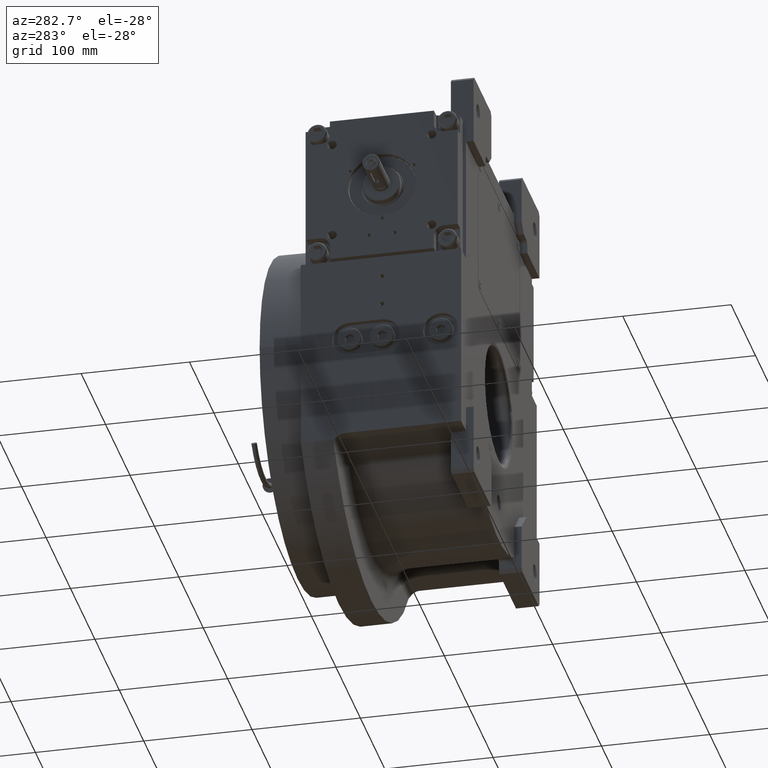
[diagram: clean part render]
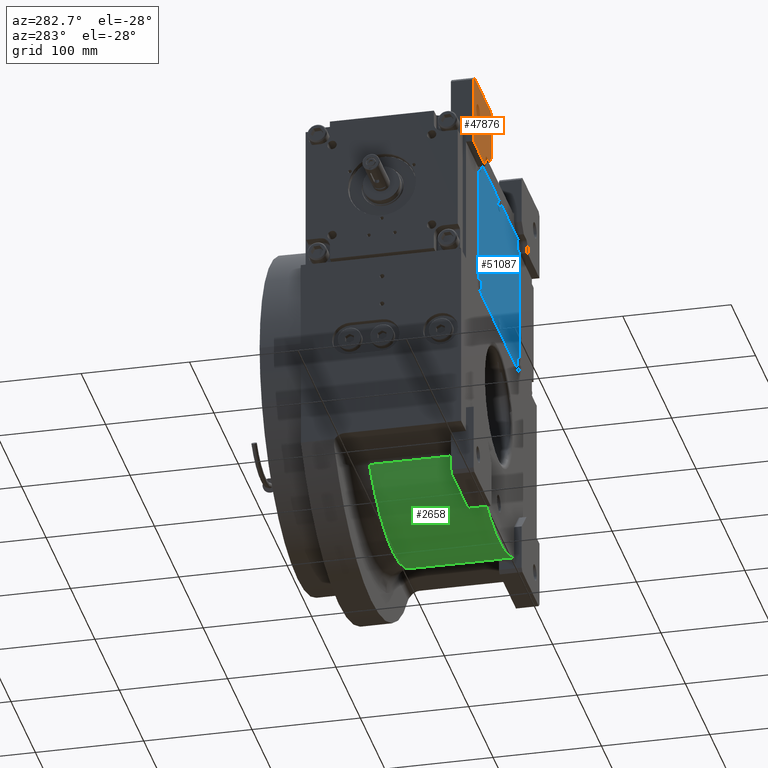
[diagram: same view with three faces highlighted in distinct colors, each labeled with its STEP entity id]
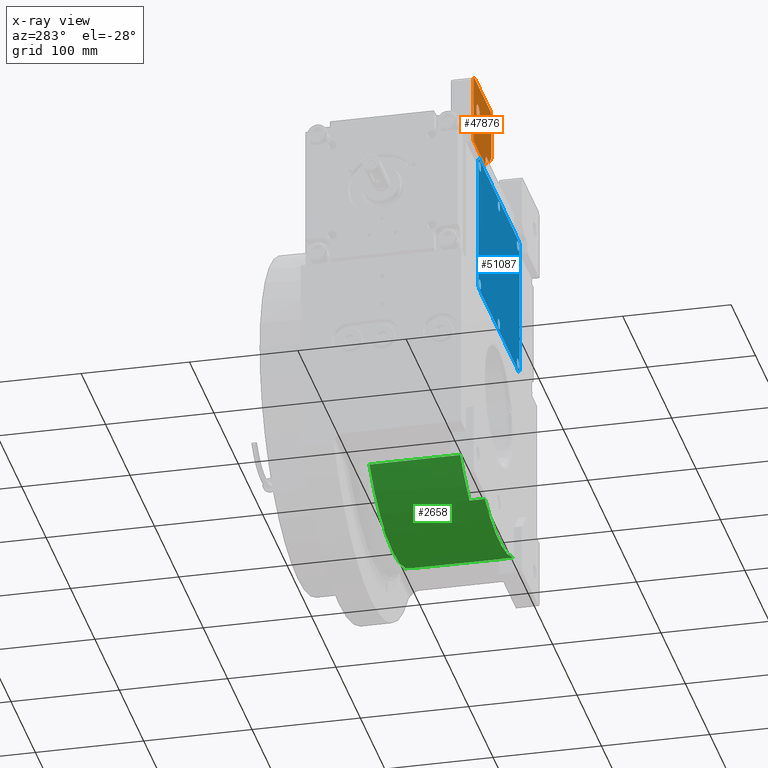
[diagram: x-ray of the same camera — body ghosted, the three highlighted faces saturated]
A machine part, auxiliary view with three faces highlighted in distinct colors.
The next image is the same camera in x-ray (body ghosted, the three faces saturated) — at least one of them is partly hidden behind the body in this view.
Their STEP definitions:

[orange] entity #47876 — the highlighted planar face has unit normal (0, -1, 0).
#321 = VECTOR ( 'NONE', #588, 1000.000000000000000 ) ;
#588 = DIRECTION ( 'NONE',  ( -1.000000000000000000, 0.000000000000000000, 0.000000000000000000 ) ) ;
#964 = VERTEX_POINT ( 'NONE', #29913 ) ;
#1017 = EDGE_CURVE ( 'NONE', #26307, #30954, #14153, .T. ) ;
#2501 = CARTESIAN_POINT ( 'NONE',  ( -62.00000000000000000, -80.00000000000000000, 262.0000000000000000 ) ) ;
#4228 = LINE ( 'NONE', #24279, #58183 ) ;
#4727 = CIRCLE ( 'NONE', #32773, 5.000000000000004441 ) ;
#5885 = CARTESIAN_POINT ( 'NONE',  ( -70.50000000000000000, -80.00000000000000000, 210.5000000000000000 ) ) ;
#7514 = CARTESIAN_POINT ( 'NONE',  ( -70.50000000000000000, -80.00000000000000000, 210.5000000000000000 ) ) ;
#7869 = FACE_BOUND ( 'NONE', #13939, .T. ) ;
#8082 = ORIENTED_EDGE ( 'NONE', *, *, #28543, .T. ) ;
#8217 = FACE_OUTER_BOUND ( 'NONE', #54449, .T. ) ;
#8939 = DIRECTION ( 'NONE',  ( -1.000000000000000000, 0.000000000000000000, 0.000000000000000000 ) ) ;
#9976 = ORIENTED_EDGE ( 'NONE', *, *, #11133, .T. ) ;
#11026 = VERTEX_POINT ( 'NONE', #40981 ) ;
#11133 = EDGE_CURVE ( 'NONE', #30954, #57952, #36730, .T. ) ;
#13729 = EDGE_CURVE ( 'NONE', #11026, #42221, #50298, .T. ) ;
#13939 = EDGE_LOOP ( 'NONE', ( #57106, #66946 ) ) ;
#14153 = LINE ( 'NONE', #50674, #62477 ) ;
#14559 = DIRECTION ( 'NONE',  ( 0.000000000000000000, 0.000000000000000000, 1.000000000000000000 ) ) ;
#14816 = CIRCLE ( 'NONE', #60813, 7.499999999999992895 ) ;
#17482 = AXIS2_PLACEMENT_3D ( 'NONE', #29367, #18854, #45193 ) ;
#17882 = ORIENTED_EDGE ( 'NONE', *, *, #50992, .F. ) ;
#18527 = VERTEX_POINT ( 'NONE', #60204 ) ;
#18854 = DIRECTION ( 'NONE',  ( 0.000000000000000000, 1.000000000000000000, 0.000000000000000000 ) ) ;
#19013 = DIRECTION ( 'NONE',  ( 1.000000000000000000, 0.000000000000000000, 0.000000000000000000 ) ) ;
#19713 = CIRCLE ( 'NONE', #17482, 7.499999999999992895 ) ;
#21059 = EDGE_CURVE ( 'NONE', #57952, #18527, #41426, .T. ) ;
#24033 = DIRECTION ( 'NONE',  ( 0.000000000000000000, -1.000000000000000000, 0.000000000000000000 ) ) ;
#24279 = CARTESIAN_POINT ( 'NONE',  ( -135.0000000000000000, -80.00000000000000000, 199.0000000000000000 ) ) ;
#24720 = PLANE ( 'NONE',  #62741 ) ;
#25064 = CARTESIAN_POINT ( 'NONE',  ( 0.000000000000000000, -80.00000000000000000, 0.000000000000000000 ) ) ;
#25068 = CARTESIAN_POINT ( 'NONE',  ( -62.00000000000000000, -80.00000000000000000, 219.0000000000000000 ) ) ;
#25375 = VECTOR ( 'NONE', #56223, 1000.000000000000000 ) ;
#25616 = DIRECTION ( 'NONE',  ( -0.7071067811865474617, 0.000000000000000000, -0.7071067811865474617 ) ) ;
#25760 = LINE ( 'NONE', #25068, #55422 ) ;
#26307 = VERTEX_POINT ( 'NONE', #2501 ) ;
#28543 = EDGE_CURVE ( 'NONE', #67443, #964, #32585, .T. ) ;
#29218 = DIRECTION ( 'NONE',  ( -0.7071067811865474617, 0.000000000000000000, 0.7071067811865474617 ) ) ;
#29318 = DIRECTION ( 'NONE',  ( 2.775557561562888984E-15, 0.000000000000000000, 1.000000000000000000 ) ) ;
#29367 = CARTESIAN_POINT ( 'NONE',  ( -116.0000000000000000, -80.00000000000000000, 238.0000000000000000 ) ) ;
#29913 = CARTESIAN_POINT ( 'NONE',  ( -62.00000000000000000, -80.00000000000000000, 219.0000000000000000 ) ) ;
#30954 = VERTEX_POINT ( 'NONE', #65042 ) ;
#31037 = EDGE_CURVE ( 'NONE', #18527, #39800, #33704, .T. ) ;
#31472 = VERTEX_POINT ( 'NONE', #39251 ) ;
#32080 = EDGE_CURVE ( 'NONE', #53634, #31472, #14816, .T. ) ;
#32585 = LINE ( 'NONE', #5885, #37451 ) ;
#32773 = AXIS2_PLACEMENT_3D ( 'NONE', #50089, #60639, #29318 ) ;
#33192 = EDGE_CURVE ( 'NONE', #67443, #68679, #69091, .T. ) ;
#33704 = LINE ( 'NONE', #60460, #25375 ) ;
#34905 = DIRECTION ( 'NONE',  ( -1.000000000000000000, 0.000000000000000000, 0.000000000000000000 ) ) ;
#35081 = CARTESIAN_POINT ( 'NONE',  ( -85.50000000000000000, -80.00000000000000000, 199.0000000000000000 ) ) ;
#36277 = ORIENTED_EDGE ( 'NONE', *, *, #13729, .F. ) ;
#36730 = LINE ( 'NONE', #42701, #61351 ) ;
#37404 = EDGE_CURVE ( 'NONE', #31472, #53634, #19713, .T. ) ;
#37451 = VECTOR ( 'NONE', #55093, 1000.000000000000000 ) ;
#39251 = CARTESIAN_POINT ( 'NONE',  ( -108.5000000000000000, -80.00000000000000000, 238.0000000000000000 ) ) ;
#39800 = VERTEX_POINT ( 'NONE', #52165 ) ;
#40981 = CARTESIAN_POINT ( 'NONE',  ( -85.50000000000000000, -80.00000000000000000, 205.5000000000000000 ) ) ;
#41382 = ORIENTED_EDGE ( 'NONE', *, *, #33192, .F. ) ;
#41426 = LINE ( 'NONE', #63225, #68230 ) ;
#42221 = VERTEX_POINT ( 'NONE', #35081 ) ;
#42701 = CARTESIAN_POINT ( 'NONE',  ( -65.00000000000000000, -80.00000000000000000, 265.0000000000000000 ) ) ;
#43584 = VECTOR ( 'NONE', #55584, 1000.000000000000000 ) ;
#45193 = DIRECTION ( 'NONE',  ( 1.000000000000000000, 0.000000000000000000, 0.000000000000000000 ) ) ;
#46048 = CARTESIAN_POINT ( 'NONE',  ( -132.0000000000000000, -80.00000000000000000, 265.0000000000000000 ) ) ;
#46526 = CARTESIAN_POINT ( 'NONE',  ( -116.0000000000000000, -80.00000000000000000, 238.0000000000000000 ) ) ;
#46766 = EDGE_CURVE ( 'NONE', #39800, #42221, #4228, .T. ) ;
#47398 = ORIENTED_EDGE ( 'NONE', *, *, #46766, .T. ) ;
#47876 = ADVANCED_FACE ( 'NONE', ( #7869, #8217 ), #24720, .T. ) ;
#48348 = DIRECTION ( 'NONE',  ( -1.000000000000000000, 0.000000000000000000, 0.000000000000000000 ) ) ;
#48363 = CARTESIAN_POINT ( 'NONE',  ( -70.50000000000000000, -80.00000000000000000, 210.5000000000000000 ) ) ;
#50026 = ORIENTED_EDGE ( 'NONE', *, *, #64885, .T. ) ;
#50089 = CARTESIAN_POINT ( 'NONE',  ( -80.50000000000000000, -80.00000000000000000, 205.5000000000000000 ) ) ;
#50298 = LINE ( 'NONE', #55240, #43584 ) ;
#50674 = CARTESIAN_POINT ( 'NONE',  ( -62.00000000000000000, -80.00000000000000000, 262.0000000000000000 ) ) ;
#50992 = EDGE_CURVE ( 'NONE', #68679, #11026, #4727, .T. ) ;
#52165 = CARTESIAN_POINT ( 'NONE',  ( -135.0000000000000000, -80.00000000000000000, 199.0000000000000000 ) ) ;
#53634 = VERTEX_POINT ( 'NONE', #69180 ) ;
#54056 = CARTESIAN_POINT ( 'NONE',  ( -80.50000000000000000, -80.00000000000000000, 210.5000000000000000 ) ) ;
#54449 = EDGE_LOOP ( 'NONE', ( #9976, #62216, #62875, #47398, #36277, #17882, #41382, #8082, #50026, #54860 ) ) ;
#54860 = ORIENTED_EDGE ( 'NONE', *, *, #1017, .T. ) ;
#55093 = DIRECTION ( 'NONE',  ( 0.7071067811865480168, 0.000000000000000000, 0.7071067811865470176 ) ) ;
#55240 = CARTESIAN_POINT ( 'NONE',  ( -85.50000000000000000, -80.00000000000000000, 205.5000000000000000 ) ) ;
#55422 = VECTOR ( 'NONE', #14559, 1000.000000000000000 ) ;
#55584 = DIRECTION ( 'NONE',  ( 0.000000000000000000, 0.000000000000000000, -1.000000000000000000 ) ) ;
#56223 = DIRECTION ( 'NONE',  ( 0.000000000000000000, 0.000000000000000000, -1.000000000000000000 ) ) ;
#57106 = ORIENTED_EDGE ( 'NONE', *, *, #37404, .T. ) ;
#57952 = VERTEX_POINT ( 'NONE', #46048 ) ;
#58183 = VECTOR ( 'NONE', #19013, 1000.000000000000000 ) ;
#60204 = CARTESIAN_POINT ( 'NONE',  ( -135.0000000000000000, -80.00000000000000000, 262.0000000000000000 ) ) ;
#60460 = CARTESIAN_POINT ( 'NONE',  ( -135.0000000000000000, -80.00000000000000000, 262.0000000000000000 ) ) ;
#60639 = DIRECTION ( 'NONE',  ( 0.000000000000000000, -1.000000000000000000, 0.000000000000000000 ) ) ;
#60813 = AXIS2_PLACEMENT_3D ( 'NONE', #46526, #67963, #8939 ) ;
#61351 = VECTOR ( 'NONE', #48348, 1000.000000000000000 ) ;
#62216 = ORIENTED_EDGE ( 'NONE', *, *, #21059, .T. ) ;
#62477 = VECTOR ( 'NONE', #29218, 1000.000000000000114 ) ;
#62741 = AXIS2_PLACEMENT_3D ( 'NONE', #25064, #24033, #34905 ) ;
#62875 = ORIENTED_EDGE ( 'NONE', *, *, #31037, .T. ) ;
#63225 = CARTESIAN_POINT ( 'NONE',  ( -132.0000000000000000, -80.00000000000000000, 265.0000000000000000 ) ) ;
#64885 = EDGE_CURVE ( 'NONE', #964, #26307, #25760, .T. ) ;
#65042 = CARTESIAN_POINT ( 'NONE',  ( -65.00000000000000000, -80.00000000000000000, 265.0000000000000000 ) ) ;
#66946 = ORIENTED_EDGE ( 'NONE', *, *, #32080, .T. ) ;
#67443 = VERTEX_POINT ( 'NONE', #7514 ) ;
#67963 = DIRECTION ( 'NONE',  ( 0.000000000000000000, 1.000000000000000000, 0.000000000000000000 ) ) ;
#68230 = VECTOR ( 'NONE', #25616, 1000.000000000000114 ) ;
#68679 = VERTEX_POINT ( 'NONE', #54056 ) ;
#69091 = LINE ( 'NONE', #48363, #321 ) ;
#69180 = CARTESIAN_POINT ( 'NONE',  ( -123.5000000000000000, -80.00000000000000000, 238.0000000000000000 ) ) ;

[blue] entity #51087 — the highlighted planar face has unit normal (0, -1, 0).
#575 = EDGE_CURVE ( 'NONE', #45671, #15589, #57967, .T. ) ;
#1290 = DIRECTION ( 'NONE',  ( 0.7071067811865474617, 0.7071067811865474617, 0.000000000000000000 ) ) ;
#1316 = EDGE_CURVE ( 'NONE', #15589, #45671, #23200, .T. ) ;
#1605 = DIRECTION ( 'NONE',  ( -1.000000000000000000, 0.000000000000000000, 0.000000000000000000 ) ) ;
#1920 = CARTESIAN_POINT ( 'NONE',  ( -4.500000000000000000, -60.00000000000000000, 3.000000000000002665 ) ) ;
#2086 = ORIENTED_EDGE ( 'NONE', *, *, #38040, .F. ) ;
#2143 = CIRCLE ( 'NONE', #37933, 4.500000000000000000 ) ;
#2975 = PLANE ( 'NONE',  #29249 ) ;
#3354 = CARTESIAN_POINT ( 'NONE',  ( 78.00000000000000000, 60.00000000000000000, 3.000000000000002665 ) ) ;
#3535 = EDGE_LOOP ( 'NONE', ( #23468, #66430, #34102, #14274, #33485, #65604, #31343, #69366 ) ) ;
#3966 = DIRECTION ( 'NONE',  ( -1.000000000000000000, 0.000000000000000000, 0.000000000000000000 ) ) ;
#4280 = DIRECTION ( 'NONE',  ( 1.000000000000000000, 0.000000000000000000, 0.000000000000000000 ) ) ;
#5376 = DIRECTION ( 'NONE',  ( -1.000000000000000000, 0.000000000000000000, 0.000000000000000000 ) ) ;
#6337 = CARTESIAN_POINT ( 'NONE',  ( -82.50000000000000000, 60.00000000000000000, 3.000000000000002665 ) ) ;
#6410 = VERTEX_POINT ( 'NONE', #17989 ) ;
#6659 = CARTESIAN_POINT ( 'NONE',  ( 81.50000000000000000, -66.50000000000000000, 3.000000000000002665 ) ) ;
#6753 = DIRECTION ( 'NONE',  ( 0.000000000000000000, 0.000000000000000000, 1.000000000000000000 ) ) ;
#7067 = DIRECTION ( 'NONE',  ( 1.000000000000000000, 0.000000000000000000, 0.000000000000000000 ) ) ;
#7266 = ORIENTED_EDGE ( 'NONE', *, *, #15461, .F. ) ;
#8075 = AXIS2_PLACEMENT_3D ( 'NONE', #3354, #24782, #67661 ) ;
#8555 = AXIS2_PLACEMENT_3D ( 'NONE', #36640, #15938, #5376 ) ;
#8604 = DIRECTION ( 'NONE',  ( 1.000000000000000000, 0.000000000000000000, 0.000000000000000000 ) ) ;
#8796 = EDGE_CURVE ( 'NONE', #28009, #37853, #46494, .T. ) ;
#8950 = EDGE_CURVE ( 'NONE', #38189, #28009, #18335, .T. ) ;
#9289 = CARTESIAN_POINT ( 'NONE',  ( 0.000000000000000000, 0.000000000000000000, 3.000000000000002665 ) ) ;
#9704 = VERTEX_POINT ( 'NONE', #1920 ) ;
#9726 = CARTESIAN_POINT ( 'NONE',  ( 73.50000000000000000, -60.00000000000000000, 3.000000000000002665 ) ) ;
#9858 = CARTESIAN_POINT ( 'NONE',  ( 0.000000000000000000, -60.00000000000000000, 3.000000000000002665 ) ) ;
#10086 = ORIENTED_EDGE ( 'NONE', *, *, #25368, .F. ) ;
#10179 = EDGE_LOOP ( 'NONE', ( #10086, #2086 ) ) ;
#10281 = CARTESIAN_POINT ( 'NONE',  ( 81.50000000000000000, 66.50000000000000000, 3.000000000000002665 ) ) ;
#10334 = VERTEX_POINT ( 'NONE', #46071 ) ;
#10510 = VERTEX_POINT ( 'NONE', #6337 ) ;
#10608 = CARTESIAN_POINT ( 'NONE',  ( 84.50000000000000000, 63.50000000000000000, 3.000000000000002665 ) ) ;
#10975 = EDGE_LOOP ( 'NONE', ( #43717, #32998 ) ) ;
#11713 = AXIS2_PLACEMENT_3D ( 'NONE', #12729, #38369, #54222 ) ;
#11835 = FACE_OUTER_BOUND ( 'NONE', #3535, .T. ) ;
#12317 = CARTESIAN_POINT ( 'NONE',  ( -84.50000000000000000, 63.50000000000000000, 3.000000000000002665 ) ) ;
#12729 = CARTESIAN_POINT ( 'NONE',  ( 0.000000000000000000, 60.00000000000000000, 3.000000000000002665 ) ) ;
#12913 = EDGE_CURVE ( 'NONE', #62732, #41488, #32984, .T. ) ;
#13889 = DIRECTION ( 'NONE',  ( 0.000000000000000000, 0.000000000000000000, 1.000000000000000000 ) ) ;
#13970 = CIRCLE ( 'NONE', #44234, 4.500000000000000000 ) ;
#14091 = AXIS2_PLACEMENT_3D ( 'NONE', #51415, #25723, #3966 ) ;
#14274 = ORIENTED_EDGE ( 'NONE', *, *, #8950, .T. ) ;
#14724 = DIRECTION ( 'NONE',  ( 1.000000000000000000, 0.000000000000000000, 0.000000000000000000 ) ) ;
#14868 = CIRCLE ( 'NONE', #39559, 4.500000000000000000 ) ;
#14924 = CARTESIAN_POINT ( 'NONE',  ( 4.500000000000000000, 60.00000000000000000, 3.000000000000002665 ) ) ;
#15461 = EDGE_CURVE ( 'NONE', #28906, #9704, #2143, .T. ) ;
#15589 = VERTEX_POINT ( 'NONE', #15818 ) ;
#15818 = CARTESIAN_POINT ( 'NONE',  ( 82.50000000000000000, -60.00000000000000000, 3.000000000000002665 ) ) ;
#15938 = DIRECTION ( 'NONE',  ( 0.000000000000000000, 0.000000000000000000, 1.000000000000000000 ) ) ;
#16431 = CARTESIAN_POINT ( 'NONE',  ( 81.50000000000000000, -66.50000000000000000, 3.000000000000002665 ) ) ;
#17154 = EDGE_CURVE ( 'NONE', #6410, #38189, #58092, .T. ) ;
#17605 = DIRECTION ( 'NONE',  ( 0.000000000000000000, 0.000000000000000000, 1.000000000000000000 ) ) ;
#17736 = CARTESIAN_POINT ( 'NONE',  ( 84.50000000000000000, -63.50000000000000000, 3.000000000000002665 ) ) ;
#17989 = CARTESIAN_POINT ( 'NONE',  ( 81.50000000000000000, 66.50000000000000000, 3.000000000000002665 ) ) ;
#18335 = LINE ( 'NONE', #50647, #22794 ) ;
#19801 = DIRECTION ( 'NONE',  ( 0.000000000000000000, -1.000000000000000000, 0.000000000000000000 ) ) ;
#20157 = VERTEX_POINT ( 'NONE', #34413 ) ;
#20782 = CIRCLE ( 'NONE', #14091, 4.500000000000003553 ) ;
#20939 = CARTESIAN_POINT ( 'NONE',  ( -84.50000000000000000, -63.50000000000000000, 3.000000000000002665 ) ) ;
#21806 = VERTEX_POINT ( 'NONE', #50442 ) ;
#22064 = CARTESIAN_POINT ( 'NONE',  ( -78.00000000000000000, 60.00000000000000000, 3.000000000000002665 ) ) ;
#22425 = VERTEX_POINT ( 'NONE', #67054 ) ;
#22464 = DIRECTION ( 'NONE',  ( 0.000000000000000000, 1.000000000000000000, 0.000000000000000000 ) ) ;
#22687 = CARTESIAN_POINT ( 'NONE',  ( 78.00000000000000000, 60.00000000000000000, 3.000000000000002665 ) ) ;
#22794 = VECTOR ( 'NONE', #60521, 1000.000000000000114 ) ;
#23200 = CIRCLE ( 'NONE', #28799, 4.500000000000003553 ) ;
#23202 = CARTESIAN_POINT ( 'NONE',  ( 78.00000000000000000, -60.00000000000000000, 3.000000000000002665 ) ) ;
#23468 = ORIENTED_EDGE ( 'NONE', *, *, #12913, .T. ) ;
#23971 = AXIS2_PLACEMENT_3D ( 'NONE', #22064, #64612, #59688 ) ;
#24747 = LINE ( 'NONE', #35628, #39286 ) ;
#24782 = DIRECTION ( 'NONE',  ( 0.000000000000000000, 0.000000000000000000, 1.000000000000000000 ) ) ;
#25038 = VECTOR ( 'NONE', #19801, 1000.000000000000000 ) ;
#25297 = EDGE_LOOP ( 'NONE', ( #55477, #62528 ) ) ;
#25368 = EDGE_CURVE ( 'NONE', #10334, #41150, #30381, .T. ) ;
#25374 = CIRCLE ( 'NONE', #34280, 4.500000000000003553 ) ;
#25723 = DIRECTION ( 'NONE',  ( 0.000000000000000000, 0.000000000000000000, 1.000000000000000000 ) ) ;
#26115 = ORIENTED_EDGE ( 'NONE', *, *, #53312, .F. ) ;
#26364 = ORIENTED_EDGE ( 'NONE', *, *, #29288, .F. ) ;
#27376 = AXIS2_PLACEMENT_3D ( 'NONE', #64752, #33752, #7067 ) ;
#27497 = EDGE_CURVE ( 'NONE', #22425, #51190, #14868, .T. ) ;
#27710 = CARTESIAN_POINT ( 'NONE',  ( 84.50000000000000000, -63.50000000000000000, 3.000000000000002665 ) ) ;
#27759 = DIRECTION ( 'NONE',  ( 1.000000000000000000, 0.000000000000000000, 0.000000000000000000 ) ) ;
#27963 = LINE ( 'NONE', #16431, #61174 ) ;
#28009 = VERTEX_POINT ( 'NONE', #12317 ) ;
#28328 = EDGE_CURVE ( 'NONE', #20157, #47041, #52987, .T. ) ;
#28495 = CIRCLE ( 'NONE', #11713, 4.500000000000000000 ) ;
#28497 = EDGE_CURVE ( 'NONE', #10510, #29312, #54303, .T. ) ;
#28780 = ORIENTED_EDGE ( 'NONE', *, *, #27497, .F. ) ;
#28799 = AXIS2_PLACEMENT_3D ( 'NONE', #23202, #17605, #27759 ) ;
#28906 = VERTEX_POINT ( 'NONE', #56013 ) ;
#29249 = AXIS2_PLACEMENT_3D ( 'NONE', #9289, #13889, #8604 ) ;
#29288 = EDGE_CURVE ( 'NONE', #9704, #28906, #13970, .T. ) ;
#29312 = VERTEX_POINT ( 'NONE', #35155 ) ;
#29442 = AXIS2_PLACEMENT_3D ( 'NONE', #64014, #36578, #4280 ) ;
#30381 = CIRCLE ( 'NONE', #8075, 4.500000000000003553 ) ;
#31025 = DIRECTION ( 'NONE',  ( -0.7071067811865474617, 0.7071067811865474617, 0.000000000000000000 ) ) ;
#31343 = ORIENTED_EDGE ( 'NONE', *, *, #28328, .T. ) ;
#32984 = LINE ( 'NONE', #27710, #52733 ) ;
#32998 = ORIENTED_EDGE ( 'NONE', *, *, #56167, .F. ) ;
#33485 = ORIENTED_EDGE ( 'NONE', *, *, #8796, .T. ) ;
#33752 = DIRECTION ( 'NONE',  ( 0.000000000000000000, 0.000000000000000000, 1.000000000000000000 ) ) ;
#34102 = ORIENTED_EDGE ( 'NONE', *, *, #17154, .T. ) ;
#34280 = AXIS2_PLACEMENT_3D ( 'NONE', #22687, #39175, #1605 ) ;
#34413 = CARTESIAN_POINT ( 'NONE',  ( -81.50000000000000000, -66.50000000000000000, 3.000000000000002665 ) ) ;
#34875 = EDGE_CURVE ( 'NONE', #61122, #21806, #57715, .T. ) ;
#34933 = FACE_BOUND ( 'NONE', #37603, .T. ) ;
#35155 = CARTESIAN_POINT ( 'NONE',  ( -73.50000000000000000, 60.00000000000000000, 3.000000000000002665 ) ) ;
#35628 = CARTESIAN_POINT ( 'NONE',  ( -84.50000000000000000, -63.50000000000000000, 3.000000000000002665 ) ) ;
#36578 = DIRECTION ( 'NONE',  ( 0.000000000000000000, 0.000000000000000000, 1.000000000000000000 ) ) ;
#36640 = CARTESIAN_POINT ( 'NONE',  ( 78.00000000000000000, -60.00000000000000000, 3.000000000000002665 ) ) ;
#37310 = CARTESIAN_POINT ( 'NONE',  ( 0.000000000000000000, -60.00000000000000000, 3.000000000000002665 ) ) ;
#37603 = EDGE_LOOP ( 'NONE', ( #26115, #62463 ) ) ;
#37853 = VERTEX_POINT ( 'NONE', #20939 ) ;
#37933 = AXIS2_PLACEMENT_3D ( 'NONE', #9858, #57669, #46406 ) ;
#38040 = EDGE_CURVE ( 'NONE', #41150, #10334, #25374, .T. ) ;
#38189 = VERTEX_POINT ( 'NONE', #40214 ) ;
#38369 = DIRECTION ( 'NONE',  ( 0.000000000000000000, 0.000000000000000000, 1.000000000000000000 ) ) ;
#39175 = DIRECTION ( 'NONE',  ( 0.000000000000000000, 0.000000000000000000, 1.000000000000000000 ) ) ;
#39286 = VECTOR ( 'NONE', #45142, 1000.000000000000114 ) ;
#39559 = AXIS2_PLACEMENT_3D ( 'NONE', #45027, #6753, #59853 ) ;
#40214 = CARTESIAN_POINT ( 'NONE',  ( -81.50000000000000000, 66.50000000000000000, 3.000000000000002665 ) ) ;
#41150 = VERTEX_POINT ( 'NONE', #66186 ) ;
#41488 = VERTEX_POINT ( 'NONE', #10608 ) ;
#41580 = LINE ( 'NONE', #63386, #57340 ) ;
#41964 = ORIENTED_EDGE ( 'NONE', *, *, #63421, .F. ) ;
#42317 = EDGE_LOOP ( 'NONE', ( #41964, #28780 ) ) ;
#43717 = ORIENTED_EDGE ( 'NONE', *, *, #34875, .F. ) ;
#44234 = AXIS2_PLACEMENT_3D ( 'NONE', #37310, #58790, #59848 ) ;
#44528 = EDGE_CURVE ( 'NONE', #37853, #20157, #24747, .T. ) ;
#45027 = CARTESIAN_POINT ( 'NONE',  ( 0.000000000000000000, 60.00000000000000000, 3.000000000000002665 ) ) ;
#45142 = DIRECTION ( 'NONE',  ( 0.7071067811865474617, -0.7071067811865474617, 0.000000000000000000 ) ) ;
#45522 = EDGE_LOOP ( 'NONE', ( #7266, #26364 ) ) ;
#45671 = VERTEX_POINT ( 'NONE', #9726 ) ;
#45830 = FACE_BOUND ( 'NONE', #25297, .T. ) ;
#46071 = CARTESIAN_POINT ( 'NONE',  ( 82.50000000000000000, 60.00000000000000000, 3.000000000000002665 ) ) ;
#46406 = DIRECTION ( 'NONE',  ( 1.000000000000000000, 0.000000000000000000, 0.000000000000000000 ) ) ;
#46494 = LINE ( 'NONE', #67928, #25038 ) ;
#47041 = VERTEX_POINT ( 'NONE', #6659 ) ;
#47717 = CARTESIAN_POINT ( 'NONE',  ( -81.50000000000000000, -66.50000000000000000, 3.000000000000002665 ) ) ;
#49205 = EDGE_CURVE ( 'NONE', #41488, #6410, #41580, .T. ) ;
#50442 = CARTESIAN_POINT ( 'NONE',  ( -82.50000000000000000, -60.00000000000000000, 3.000000000000002665 ) ) ;
#50647 = CARTESIAN_POINT ( 'NONE',  ( -81.50000000000000000, 66.50000000000000000, 3.000000000000002665 ) ) ;
#51087 = ADVANCED_FACE ( 'NONE', ( #11835, #51472, #56772, #34933, #45830, #57112, #61670 ), #2975, .T. ) ;
#51190 = VERTEX_POINT ( 'NONE', #14924 ) ;
#51415 = CARTESIAN_POINT ( 'NONE',  ( -78.00000000000000000, -60.00000000000000000, 3.000000000000002665 ) ) ;
#51472 = FACE_BOUND ( 'NONE', #10179, .T. ) ;
#52733 = VECTOR ( 'NONE', #22464, 1000.000000000000000 ) ;
#52987 = LINE ( 'NONE', #47717, #64375 ) ;
#53312 = EDGE_CURVE ( 'NONE', #29312, #10510, #59802, .T. ) ;
#54022 = VECTOR ( 'NONE', #64765, 1000.000000000000000 ) ;
#54222 = DIRECTION ( 'NONE',  ( 1.000000000000000000, 0.000000000000000000, 0.000000000000000000 ) ) ;
#54303 = CIRCLE ( 'NONE', #23971, 4.500000000000003553 ) ;
#55461 = EDGE_CURVE ( 'NONE', #47041, #62732, #27963, .T. ) ;
#55477 = ORIENTED_EDGE ( 'NONE', *, *, #1316, .F. ) ;
#56013 = CARTESIAN_POINT ( 'NONE',  ( 4.500000000000000000, -60.00000000000000000, 3.000000000000002665 ) ) ;
#56167 = EDGE_CURVE ( 'NONE', #21806, #61122, #20782, .T. ) ;
#56772 = FACE_BOUND ( 'NONE', #42317, .T. ) ;
#57112 = FACE_BOUND ( 'NONE', #45522, .T. ) ;
#57340 = VECTOR ( 'NONE', #31025, 1000.000000000000114 ) ;
#57669 = DIRECTION ( 'NONE',  ( 0.000000000000000000, 0.000000000000000000, 1.000000000000000000 ) ) ;
#57715 = CIRCLE ( 'NONE', #27376, 4.500000000000003553 ) ;
#57967 = CIRCLE ( 'NONE', #8555, 4.500000000000003553 ) ;
#58092 = LINE ( 'NONE', #10281, #54022 ) ;
#58790 = DIRECTION ( 'NONE',  ( 0.000000000000000000, 0.000000000000000000, 1.000000000000000000 ) ) ;
#59590 = CARTESIAN_POINT ( 'NONE',  ( -73.50000000000000000, -60.00000000000000000, 3.000000000000002665 ) ) ;
#59688 = DIRECTION ( 'NONE',  ( -1.000000000000000000, 0.000000000000000000, 0.000000000000000000 ) ) ;
#59802 = CIRCLE ( 'NONE', #29442, 4.500000000000003553 ) ;
#59848 = DIRECTION ( 'NONE',  ( -1.000000000000000000, 0.000000000000000000, 0.000000000000000000 ) ) ;
#59853 = DIRECTION ( 'NONE',  ( -1.000000000000000000, 0.000000000000000000, 0.000000000000000000 ) ) ;
#60521 = DIRECTION ( 'NONE',  ( -0.7071067811865474617, -0.7071067811865474617, 0.000000000000000000 ) ) ;
#61122 = VERTEX_POINT ( 'NONE', #59590 ) ;
#61174 = VECTOR ( 'NONE', #1290, 1000.000000000000114 ) ;
#61670 = FACE_BOUND ( 'NONE', #10975, .T. ) ;
#62463 = ORIENTED_EDGE ( 'NONE', *, *, #28497, .F. ) ;
#62528 = ORIENTED_EDGE ( 'NONE', *, *, #575, .F. ) ;
#62732 = VERTEX_POINT ( 'NONE', #17736 ) ;
#63386 = CARTESIAN_POINT ( 'NONE',  ( 84.50000000000000000, 63.50000000000000000, 3.000000000000002665 ) ) ;
#63421 = EDGE_CURVE ( 'NONE', #51190, #22425, #28495, .T. ) ;
#64014 = CARTESIAN_POINT ( 'NONE',  ( -78.00000000000000000, 60.00000000000000000, 3.000000000000002665 ) ) ;
#64375 = VECTOR ( 'NONE', #14724, 1000.000000000000000 ) ;
#64612 = DIRECTION ( 'NONE',  ( 0.000000000000000000, 0.000000000000000000, 1.000000000000000000 ) ) ;
#64752 = CARTESIAN_POINT ( 'NONE',  ( -78.00000000000000000, -60.00000000000000000, 3.000000000000002665 ) ) ;
#64765 = DIRECTION ( 'NONE',  ( -1.000000000000000000, 0.000000000000000000, 0.000000000000000000 ) ) ;
#65604 = ORIENTED_EDGE ( 'NONE', *, *, #44528, .T. ) ;
#66186 = CARTESIAN_POINT ( 'NONE',  ( 73.50000000000000000, 60.00000000000000000, 3.000000000000002665 ) ) ;
#66430 = ORIENTED_EDGE ( 'NONE', *, *, #49205, .T. ) ;
#67054 = CARTESIAN_POINT ( 'NONE',  ( -4.500000000000000000, 60.00000000000000000, 3.000000000000002665 ) ) ;
#67661 = DIRECTION ( 'NONE',  ( 1.000000000000000000, 0.000000000000000000, 0.000000000000000000 ) ) ;
#67928 = CARTESIAN_POINT ( 'NONE',  ( -84.50000000000000000, 63.50000000000000000, 3.000000000000002665 ) ) ;
#69366 = ORIENTED_EDGE ( 'NONE', *, *, #55461, .T. ) ;

[green] entity #2658 — the highlighted cylindrical surface (partial cylindrical patch) has radius 138 mm, axis along (0, 1, 0).
#82 = DIRECTION ( 'NONE',  ( 0.000000000000000000, -1.000000000000000000, 0.000000000000000000 ) ) ;
#717 = LINE ( 'NONE', #22133, #42496 ) ;
#2184 = LINE ( 'NONE', #7107, #28842 ) ;
#2658 = ADVANCED_FACE ( 'NONE', ( #46715 ), #57284, .T. ) ;
#3581 = VERTEX_POINT ( 'NONE', #60323 ) ;
#3887 = ORIENTED_EDGE ( 'NONE', *, *, #4787, .F. ) ;
#4445 = ORIENTED_EDGE ( 'NONE', *, *, #19747, .T. ) ;
#4787 = EDGE_CURVE ( 'NONE', #14079, #50950, #66165, .T. ) ;
#6148 = VERTEX_POINT ( 'NONE', #14197 ) ;
#7016 = VERTEX_POINT ( 'NONE', #14025 ) ;
#7107 = CARTESIAN_POINT ( 'NONE',  ( -96.30722616471349795, -59.00000000000000000, -98.83783783783779597 ) ) ;
#9697 = AXIS2_PLACEMENT_3D ( 'NONE', #68140, #50951, #20005 ) ;
#11155 = ORIENTED_EDGE ( 'NONE', *, *, #57496, .T. ) ;
#11412 = VERTEX_POINT ( 'NONE', #29998 ) ;
#13358 = ORIENTED_EDGE ( 'NONE', *, *, #33994, .T. ) ;
#14025 = CARTESIAN_POINT ( 'NONE',  ( 57.74468085106380499, -59.00000000000000000, -125.3377510306004012 ) ) ;
#14079 = VERTEX_POINT ( 'NONE', #47426 ) ;
#14197 = CARTESIAN_POINT ( 'NONE',  ( -96.30722393658518854, 24.99999992571344976, -98.83796549704690904 ) ) ;
#15740 = EDGE_CURVE ( 'NONE', #3581, #47500, #18600, .T. ) ;
#15744 = DIRECTION ( 'NONE',  ( 0.000000000000000000, 1.000000000000000000, 0.000000000000000000 ) ) ;
#16101 = EDGE_CURVE ( 'NONE', #3581, #7016, #34278, .T. ) ;
#17974 = ORIENTED_EDGE ( 'NONE', *, *, #16101, .T. ) ;
#18600 = LINE ( 'NONE', #56207, #54357 ) ;
#19747 = EDGE_CURVE ( 'NONE', #11412, #6148, #2184, .T. ) ;
#20005 = DIRECTION ( 'NONE',  ( 0.000000000000000000, 0.000000000000000000, 1.000000000000000000 ) ) ;
#21851 = DIRECTION ( 'NONE',  ( -0.4184397163120575636, 0.000000000000000000, -0.9082445726855100654 ) ) ;
#22133 = CARTESIAN_POINT ( 'NONE',  ( -57.74468085106390447, -59.00000000000000000, -125.3377510306004012 ) ) ;
#23406 = CARTESIAN_POINT ( 'NONE',  ( -1.421085471520200056E-14, 25.00000000000330047, 8.526512829121199706E-14 ) ) ;
#26834 = ORIENTED_EDGE ( 'NONE', *, *, #46917, .F. ) ;
#27734 = DIRECTION ( 'NONE',  ( 0.000000000000000000, 1.000000000000000000, 0.000000000000000000 ) ) ;
#28842 = VECTOR ( 'NONE', #49309, 1000.000000000000000 ) ;
#29998 = CARTESIAN_POINT ( 'NONE',  ( -96.30722616471359743, -59.00000000000000000, -98.83783783783779597 ) ) ;
#30647 = DIRECTION ( 'NONE',  ( 0.000000000000000000, 1.000000000000000000, 0.000000000000000000 ) ) ;
#30672 = CIRCLE ( 'NONE', #35202, 138.0000000000000853 ) ;
#32441 = VERTEX_POINT ( 'NONE', #65144 ) ;
#33994 = EDGE_CURVE ( 'NONE', #6148, #47500, #30672, .T. ) ;
#34269 = ORIENTED_EDGE ( 'NONE', *, *, #36514, .F. ) ;
#34278 = CIRCLE ( 'NONE', #48001, 138.0000000000000853 ) ;
#35202 = AXIS2_PLACEMENT_3D ( 'NONE', #23406, #44824, #39552 ) ;
#36514 = EDGE_CURVE ( 'NONE', #50950, #7016, #55590, .T. ) ;
#37135 = DIRECTION ( 'NONE',  ( 0.6978784504689377055, 0.000000000000000000, -0.7162162162162165613 ) ) ;
#39552 = DIRECTION ( 'NONE',  ( -0.6978784504689377055, -1.201735973212917754E-14, -0.7162162162162165613 ) ) ;
#39740 = CARTESIAN_POINT ( 'NONE',  ( 57.74468085106380499, -73.00000000000000000, -125.3377510306004012 ) ) ;
#42421 = CARTESIAN_POINT ( 'NONE',  ( 1.421085471520199867E-13, -59.00000000000000000, -2.700062395888380201E-13 ) ) ;
#42496 = VECTOR ( 'NONE', #58346, 1000.000000000000000 ) ;
#43419 = CARTESIAN_POINT ( 'NONE',  ( 57.74468085106380499, -73.00000000000000000, -125.3377510306004012 ) ) ;
#44824 = DIRECTION ( 'NONE',  ( -6.789570679155330615E-15, -1.000000000000000000, 2.340198913247644897E-14 ) ) ;
#46489 = DIRECTION ( 'NONE',  ( -0.4184397163120575636, 0.000000000000000000, -0.9082445726855100654 ) ) ;
#46715 = FACE_OUTER_BOUND ( 'NONE', #54225, .T. ) ;
#46917 = EDGE_CURVE ( 'NONE', #32441, #14079, #717, .T. ) ;
#47426 = CARTESIAN_POINT ( 'NONE',  ( -57.74468085106390447, -73.00000000000000000, -125.3377510306004012 ) ) ;
#47500 = VERTEX_POINT ( 'NONE', #62764 ) ;
#48001 = AXIS2_PLACEMENT_3D ( 'NONE', #42421, #15744, #37135 ) ;
#48208 = CARTESIAN_POINT ( 'NONE',  ( 0.000000000000000000, -73.00000000000000000, -1.705302565824239941E-13 ) ) ;
#49309 = DIRECTION ( 'NONE',  ( 0.000000000000000000, 1.000000000000000000, 0.000000000000000000 ) ) ;
#50950 = VERTEX_POINT ( 'NONE', #43419 ) ;
#50951 = DIRECTION ( 'NONE',  ( 0.000000000000000000, 1.000000000000000000, 0.000000000000000000 ) ) ;
#51685 = DIRECTION ( 'NONE',  ( 0.000000000000000000, 1.000000000000000000, 0.000000000000000000 ) ) ;
#51768 = CARTESIAN_POINT ( 'NONE',  ( 5.542233338928780440E-13, -59.00000000000000000, 9.237055564881300397E-13 ) ) ;
#54225 = EDGE_LOOP ( 'NONE', ( #17974, #34269, #3887, #26834, #11155, #4445, #13358, #67055 ) ) ;
#54357 = VECTOR ( 'NONE', #27734, 1000.000000000000000 ) ;
#55590 = LINE ( 'NONE', #39740, #60024 ) ;
#56207 = CARTESIAN_POINT ( 'NONE',  ( 96.30722616471349795, -59.00000000000000000, -98.83783783783789545 ) ) ;
#56731 = CIRCLE ( 'NONE', #58973, 138.0000000000000000 ) ;
#57284 = CYLINDRICAL_SURFACE ( 'NONE', #9697, 138.0000000000000000 ) ;
#57496 = EDGE_CURVE ( 'NONE', #32441, #11412, #56731, .T. ) ;
#58346 = DIRECTION ( 'NONE',  ( 0.000000000000000000, -1.000000000000000000, 0.000000000000000000 ) ) ;
#58973 = AXIS2_PLACEMENT_3D ( 'NONE', #51768, #30647, #46489 ) ;
#60024 = VECTOR ( 'NONE', #51685, 1000.000000000000000 ) ;
#60323 = CARTESIAN_POINT ( 'NONE',  ( 96.30722616471339848, -59.00000000000000000, -98.83783783783789545 ) ) ;
#61689 = AXIS2_PLACEMENT_3D ( 'NONE', #48208, #82, #21851 ) ;
#62764 = CARTESIAN_POINT ( 'NONE',  ( 96.30723760260589472, 24.99999990761120117, -98.83797943607669367 ) ) ;
#65144 = CARTESIAN_POINT ( 'NONE',  ( -57.74468085106390447, -59.00000000000000000, -125.3377510306004012 ) ) ;
#66165 = CIRCLE ( 'NONE', #61689, 138.0000000000000000 ) ;
#67055 = ORIENTED_EDGE ( 'NONE', *, *, #15740, .F. ) ;
#68140 = CARTESIAN_POINT ( 'NONE',  ( -2.057655180072804513E-28, -73.00000000000000000, 0.000000000000000000 ) ) ;